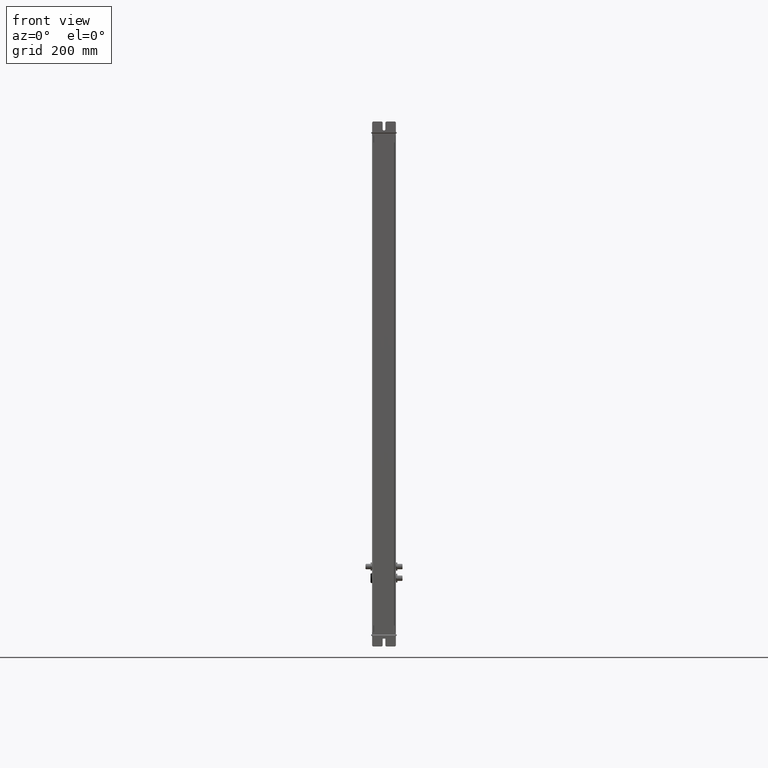
[diagram: clean part render]
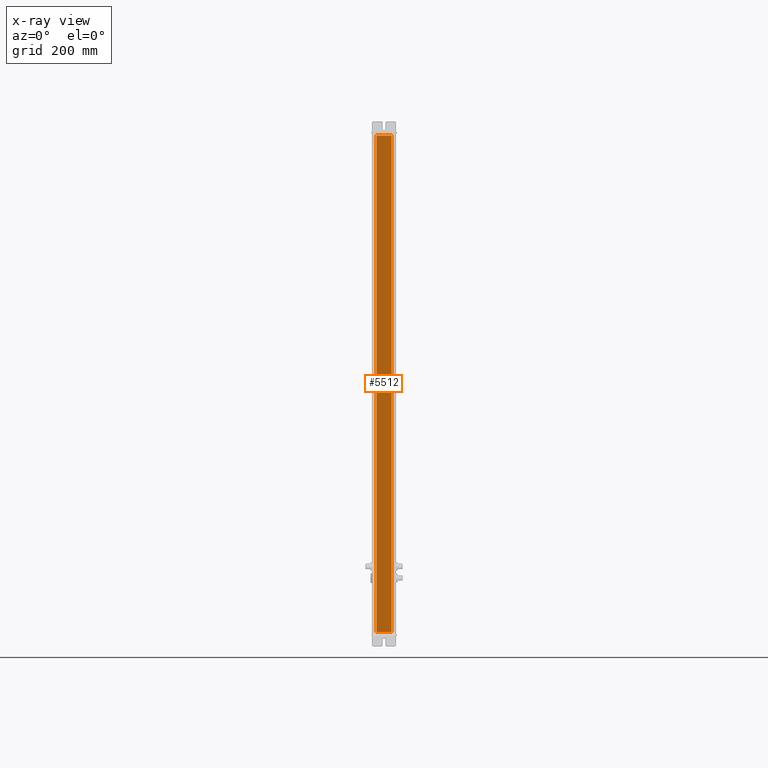
[diagram: x-ray — body ghosted, one internal face saturated and labeled with its STEP entity id]
A machine part, front view, then the same camera in x-ray: the body is ghosted and one INTERNAL B-rep face — a face not visible from any outside direction — is saturated and labeled: STEP entity #5512.
In plain terms, the highlighted planar face has unit normal (0, 1, 0).
Its self-contained STEP definition (entity closure, byte-faithful):
#5386=CARTESIAN_POINT('Vertex',(622.718933105,175.558215232,0.)) ;
#5402=CARTESIAN_POINT('Vertex',(656.16796875,175.558215232,0.)) ;
#5405=CARTESIAN_POINT('Line Origine',(639.443450928,175.558215232,0.)) ;
#5426=CARTESIAN_POINT('Vertex',(622.718933105,175.558215232,1112.)) ;
#5436=CARTESIAN_POINT('Line Origine',(622.718933105,175.558215232,556.)) ;
#5481=CARTESIAN_POINT('Vertex',(656.16796875,175.558215232,1112.)) ;
#5484=CARTESIAN_POINT('Line Origine',(656.16796875,175.558215232,556.)) ;
#5496=CARTESIAN_POINT('Axis2P3D Location',(622.718933105,175.558215232,0.)) ;
#5501=CARTESIAN_POINT('Line Origine',(639.443450928,175.558215232,1112.)) ;
#5406=DIRECTION('Vector Direction',(1.,0.,0.)) ;
#5437=DIRECTION('Vector Direction',(0.,0.,1.)) ;
#5485=DIRECTION('Vector Direction',(0.,0.,1.)) ;
#5497=DIRECTION('Axis2P3D Direction',(0.,-1.,0.)) ;
#5498=DIRECTION('Axis2P3D XDirection',(1.,0.,0.)) ;
#5502=DIRECTION('Vector Direction',(1.,0.,0.)) ;
#5499=AXIS2_PLACEMENT_3D('Plane Axis2P3D',#5496,#5497,#5498) ;
#5507=ORIENTED_EDGE('',*,*,#5440,.F.) ;
#5508=ORIENTED_EDGE('',*,*,#5409,.F.) ;
#5509=ORIENTED_EDGE('',*,*,#5488,.T.) ;
#5510=ORIENTED_EDGE('',*,*,#5505,.F.) ;
#5407=VECTOR('Line Direction',#5406,1.) ;
#5438=VECTOR('Line Direction',#5437,1.) ;
#5486=VECTOR('Line Direction',#5485,1.) ;
#5503=VECTOR('Line Direction',#5502,1.) ;
#5512=ADVANCED_FACE('Body.3',(#5511),#5500,.T.) ;
#5409=EDGE_CURVE('',#5403,#5387,#5408,.F.) ;
#5440=EDGE_CURVE('',#5387,#5427,#5439,.T.) ;
#5488=EDGE_CURVE('',#5403,#5482,#5487,.T.) ;
#5505=EDGE_CURVE('',#5427,#5482,#5504,.T.) ;
#5506=EDGE_LOOP('',(#5507,#5508,#5509,#5510)) ;
#5511=FACE_OUTER_BOUND('',#5506,.T.) ;
#5408=LINE('Line',#5405,#5407) ;
#5439=LINE('Line',#5436,#5438) ;
#5487=LINE('Line',#5484,#5486) ;
#5504=LINE('Line',#5501,#5503) ;
#5500=PLANE('Plane',#5499) ;
#5387=VERTEX_POINT('',#5386) ;
#5403=VERTEX_POINT('',#5402) ;
#5427=VERTEX_POINT('',#5426) ;
#5482=VERTEX_POINT('',#5481) ;